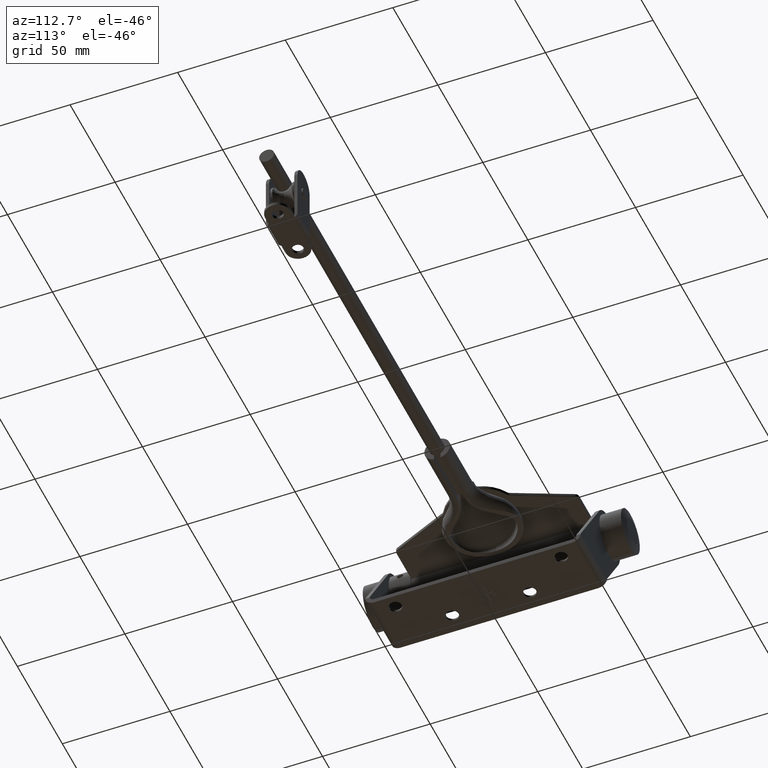
[diagram: clean part render]
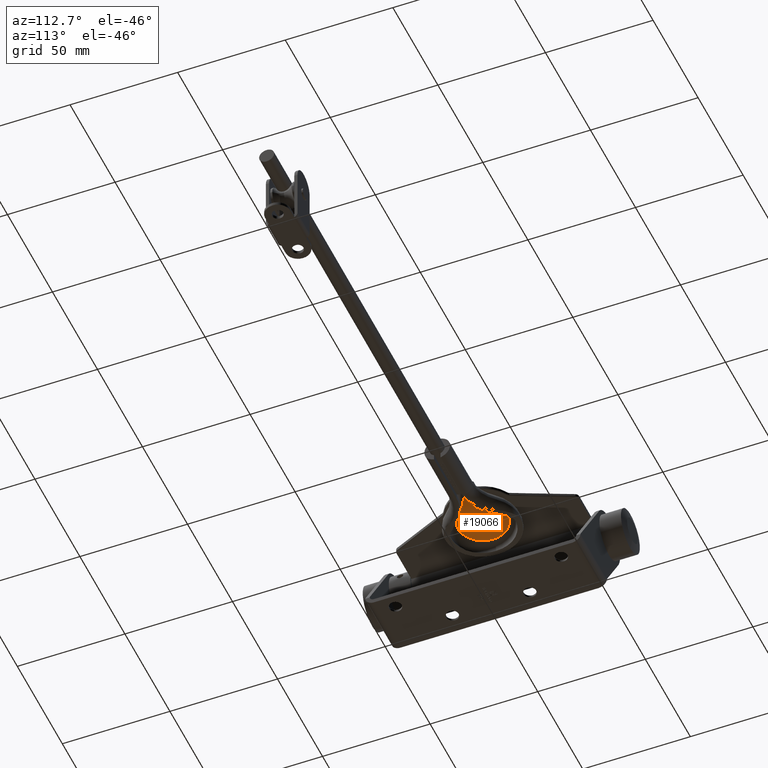
[diagram: same view with one face highlighted and labeled with its STEP entity id]
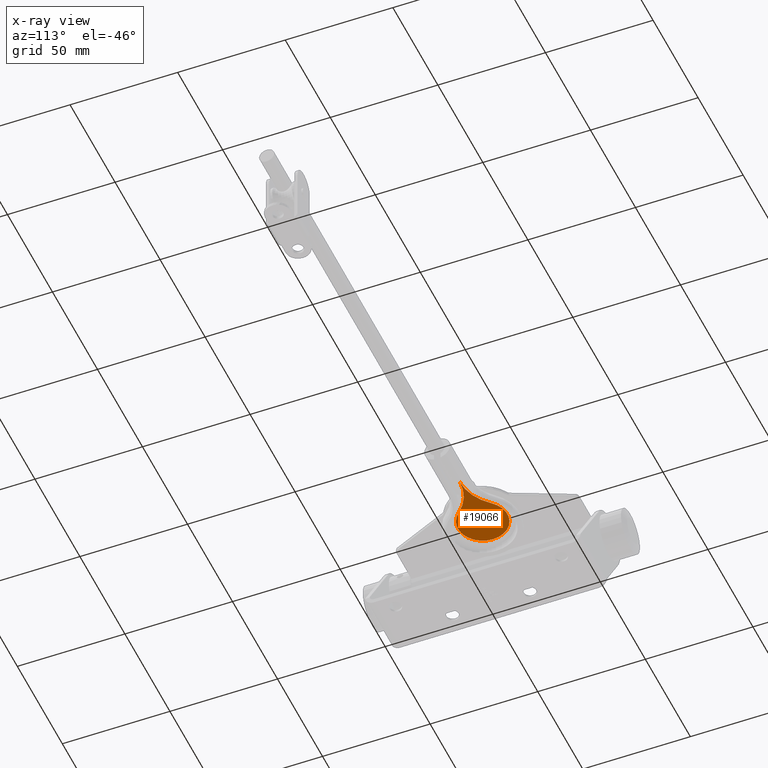
[diagram: x-ray of the same camera — body ghosted, the highlighted face saturated]
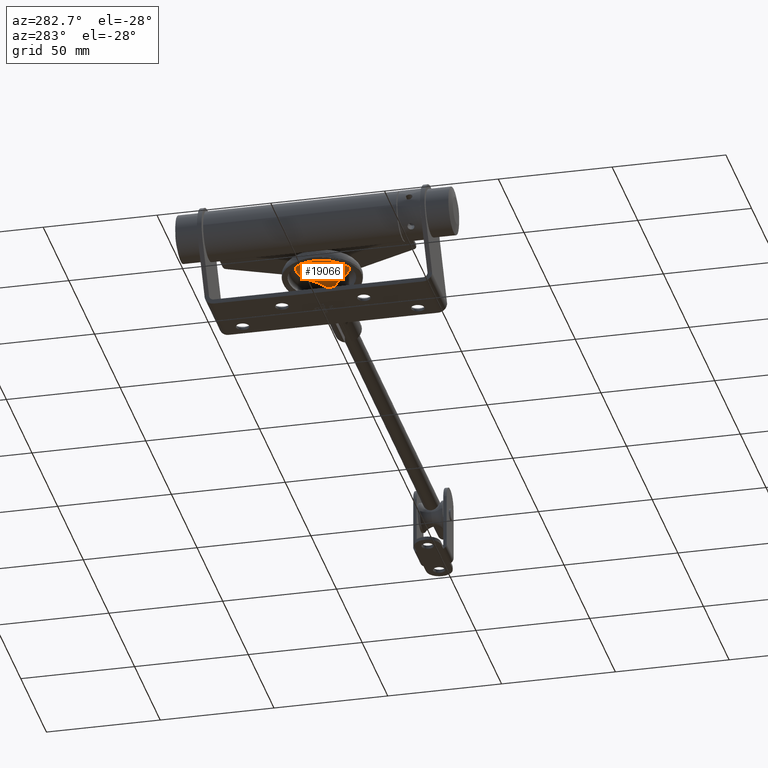
[diagram: same view with one face highlighted and labeled with its STEP entity id]
A machine part, auxiliary view. The second image highlights one B-rep face of the part: STEP entity #19066.
The next image is the same camera in x-ray: the body ghosted, the highlighted face saturated — about 0% of this face is hidden behind the body in this view.
A second angle (auxiliary view) of the same face is appended — the face is thin or edge-on in the first view.
In plain terms, the highlighted planar face has unit normal (-0, 0, 1).
Its self-contained STEP definition (entity closure, byte-faithful):
#1908 = AXIS2_PLACEMENT_3D ( 'NONE', #9930, #21848, #5855 ) ;
#1918 = DIRECTION ( 'NONE',  ( 0.6619808306709258350, 0.000000000000000000, -0.7495207667731635937 ) ) ;
#1960 = EDGE_CURVE ( 'NONE', #5309, #20363, #5223, .T. ) ;
#2083 = DIRECTION ( 'NONE',  ( -0.000000000000000000, -1.000000000000000000, -0.000000000000000000 ) ) ;
#2689 = CARTESIAN_POINT ( 'NONE',  ( -8.319731063338714161E-16, 0.000000000000000000, 25.49999999999999645 ) ) ;
#2918 = CIRCLE ( 'NONE', #15358, 11.49999999999999645 ) ;
#3184 = AXIS2_PLACEMENT_3D ( 'NONE', #14809, #20682, #10603 ) ;
#3775 = FACE_OUTER_BOUND ( 'NONE', #24598, .T. ) ;
#3959 = CARTESIAN_POINT ( 'NONE',  ( 0.000000000000000000, 0.000000000000000000, 0.000000000000000000 ) ) ;
#3987 = EDGE_CURVE ( 'NONE', #22078, #20363, #23828, .T. ) ;
#4483 = EDGE_CURVE ( 'NONE', #11379, #5309, #2918, .T. ) ;
#5189 = DIRECTION ( 'NONE',  ( 0.000000000000000000, 0.000000000000000000, -1.000000000000000000 ) ) ;
#5223 = CIRCLE ( 'NONE', #3184, 22.52173913043478848 ) ;
#5309 = VERTEX_POINT ( 'NONE', #8256 ) ;
#5432 = EDGE_CURVE ( 'NONE', #22078, #11379, #10491, .T. ) ;
#5810 = DIRECTION ( 'NONE',  ( 0.000000000000000000, 0.000000000000000000, -1.000000000000000000 ) ) ;
#5855 = DIRECTION ( 'NONE',  ( 0.000000000000000000, -0.000000000000000000, 1.000000000000000000 ) ) ;
#6108 = ORIENTED_EDGE ( 'NONE', *, *, #3987, .F. ) ;
#6245 = AXIS2_PLACEMENT_3D ( 'NONE', #3959, #15948, #5810 ) ;
#6499 = ORIENTED_EDGE ( 'NONE', *, *, #5432, .T. ) ;
#6643 = CARTESIAN_POINT ( 'NONE',  ( 0.000000000000000000, 0.000000000000000000, -11.49999999999999467 ) ) ;
#8256 = CARTESIAN_POINT ( 'NONE',  ( 7.612779552715654319, 0.000000000000000000, 8.619488817891360455 ) ) ;
#9453 = ORIENTED_EDGE ( 'NONE', *, *, #4483, .T. ) ;
#9930 = CARTESIAN_POINT ( 'NONE',  ( 22.52173913043478493, 0.000000000000000000, 25.50000000000000000 ) ) ;
#10057 = CARTESIAN_POINT ( 'NONE',  ( -22.52173913043478493, 0.000000000000000000, 25.50000000000000000 ) ) ;
#10143 = AXIS2_PLACEMENT_3D ( 'NONE', #10057, #2083, #1918 ) ;
#10491 = CIRCLE ( 'NONE', #6245, 11.49999999999999645 ) ;
#10603 = DIRECTION ( 'NONE',  ( -0.6619808306709258350, 0.000000000000000000, -0.7495207667731635937 ) ) ;
#11379 = VERTEX_POINT ( 'NONE', #6643 ) ;
#14809 = CARTESIAN_POINT ( 'NONE',  ( 22.52173913043478493, 0.000000000000000000, 25.50000000000000000 ) ) ;
#15358 = AXIS2_PLACEMENT_3D ( 'NONE', #25442, #21620, #5189 ) ;
#15948 = DIRECTION ( 'NONE',  ( -0.000000000000000000, -1.000000000000000000, -0.000000000000000000 ) ) ;
#17766 = ORIENTED_EDGE ( 'NONE', *, *, #1960, .T. ) ;
#19066 = ADVANCED_FACE ( 'NONE', ( #3775 ), #23888, .F. ) ;
#20100 = CARTESIAN_POINT ( 'NONE',  ( -7.612779552715654319, 0.000000000000000000, 8.619488817891360455 ) ) ;
#20363 = VERTEX_POINT ( 'NONE', #2689 ) ;
#20682 = DIRECTION ( 'NONE',  ( 0.000000000000000000, 1.000000000000000000, 0.000000000000000000 ) ) ;
#21620 = DIRECTION ( 'NONE',  ( -0.000000000000000000, -1.000000000000000000, -0.000000000000000000 ) ) ;
#21848 = DIRECTION ( 'NONE',  ( 0.000000000000000000, 1.000000000000000000, 0.000000000000000000 ) ) ;
#22078 = VERTEX_POINT ( 'NONE', #20100 ) ;
#23828 = CIRCLE ( 'NONE', #10143, 22.52173913043478848 ) ;
#23888 = PLANE ( 'NONE',  #1908 ) ;
#24598 = EDGE_LOOP ( 'NONE', ( #17766, #6108, #6499, #9453 ) ) ;
#25442 = CARTESIAN_POINT ( 'NONE',  ( 0.000000000000000000, 0.000000000000000000, 0.000000000000000000 ) ) ;